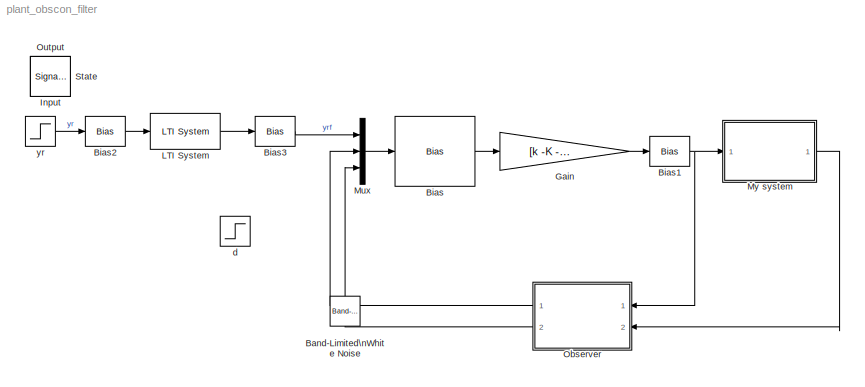
MODEL plant_obscon_filter
KIND model
BLOCK [Reference] Band-Limited\nWhite Noise  REF=simulink/Sources/Band-Limited\nWhite Noise
  Cov = 1e-6*0
  IOType = siggen
  Ports = [0, 1]
  SID = 12
  SourceBlock = simulink/Sources/Band-Limited\nWhite Noise
  SourceType = Band-Limited White Noise.
  Ts = 1e-2
  VectorParams1D = on
  seed = [23341]
BLOCK [Bias] Bias
  Bias = [-ybar; -xbar; -dbar]
  SID = 23
  SaturateOnIntegerOverflow = off
BLOCK [Bias] Bias1
  Bias = ubar
  SID = 24
  SaturateOnIntegerOverflow = off
BLOCK [Bias] Bias2
  Bias = -ybar
  SID = 37
  SaturateOnIntegerOverflow = off
BLOCK [Bias] Bias3
  Bias = ybar
  SID = 38
  SaturateOnIntegerOverflow = off
BLOCK [Gain] Gain
  Gain = [k -K -kd]
  Multiplication = Matrix(K*u) (u vector)
  OutDataTypeStr = Inherit: Inherit via internal rule
  ParamDataTypeStr = Inherit: Inherit via internal rule
  SID = 19
  SaturateOnIntegerOverflow = off
BLOCK [SignalViewerScope] Input
  IOType = viewer
  LegendLocations = 0.72634     0.90138     0.19753    0.035179\n0.65535      0.4158     0.26852    0.062284
  LimitDataPoints = off
  MaxDataPoints = 7500
  NumInputPorts = 2
  Ports = []
  RefreshTime = 0.035000
  SID = 17
  SaveName = ScopeData2
  ShowDataMarkers = off
  ShowLegends = on
  TimeRange = 40
  YMax = 0.45~0.05
  YMin = -0.4~-0.0025
BLOCK [Reference] LTI System  REF=cstblocks/LTI System
  IC = []
  Ports = [1, 1]
  SID = 36
  SourceBlock = cstblocks/LTI System
  SourceType = LTI Block
  sys = sysf
BLOCK [Mux] Mux
  DisplayOption = bar
  Inputs = [1 3  1]
  Ports = [3, 1]
  SID = 20
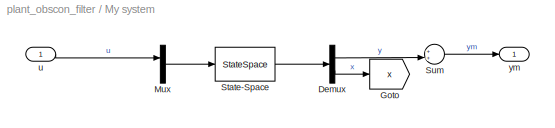
BLOCK [SubSystem] My system
  FunctionWithSeparateData = off
  MaskHideContents = off
  MinAlgLoopOccurrences = off
  Opaque = off
  Ports = [1, 1]
  PropExecContextOutsideSubsystem = off
  RTWSystemCode = Auto
  RequestExecContextInheritance = off
  SID = 1
BLOCK [Demux] My system/Demux
  DisplayOption = bar
  Outputs = [1 3]
  Ports = [1, 2]
  SID = 3
BLOCK [Goto] My system/Goto
  GotoTag = x
  SID = 22
  TagVisibility = global
BLOCK [Mux] My system/Mux
  DisplayOption = bar
  Inputs = 2
  Ports = [2, 1]
  SID = 5
BLOCK [StateSpace] My system/State-Space
  A = A
  B = [B Bd]
  C = [C; eye(3)]
  D = [D Dd; zeros(3,2)]
  SID = 6
  X0 = xbar
BLOCK [Sum] My system/Sum
  IconShape = round
  InputSameDT = off
  Inputs = ++|
  OutDataTypeStr = Inherit: Inherit via internal rule
  Ports = [2, 1]
  SID = 7
  SaturateOnIntegerOverflow = off
BLOCK [Inport] My system/u
  IconDisplay = Port number
  SID = 2
BLOCK [Outport] My system/ym
  IconDisplay = Port number
  SID = 9
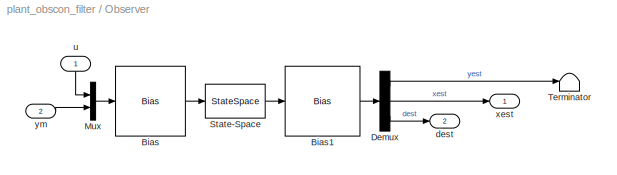
BLOCK [SubSystem] Observer
  FunctionWithSeparateData = off
  MaskHideContents = off
  MinAlgLoopOccurrences = off
  Opaque = off
  Ports = [2, 2]
  PropExecContextOutsideSubsystem = off
  RTWSystemCode = Auto
  RequestExecContextInheritance = off
  SID = 25
BLOCK [Bias] Observer/Bias
  Bias = [-ubar; -ybar]
  SID = 34
  SaturateOnIntegerOverflow = off
BLOCK [Bias] Observer/Bias1
  Bias = [ybar; xbar; dbar]
  SID = 35
  SaturateOnIntegerOverflow = off
BLOCK [Demux] Observer/Demux
  DisplayOption = bar
  Outputs = [1 3 1]
  Ports = [1, 3]
  SID = 28
BLOCK [Mux] Observer/Mux
  DisplayOption = bar
  Inputs = 2
  Ports = [2, 1]
  SID = 29
BLOCK [StateSpace] Observer/State-Space
  A = Aa-La*Ca
  B = [Ba La]
  C = [Ca; eye(4)]
  D = zeros(5,2)
  SID = 30
  X0 = xaestbar
BLOCK [Terminator] Observer/Terminator
  SID = 31
BLOCK [Outport] Observer/dest
  IconDisplay = Port number
  Port = 2
  SID = 33
BLOCK [Inport] Observer/u
  IconDisplay = Port number
  SID = 26
BLOCK [Outport] Observer/xest
  IconDisplay = Port number
  SID = 32
BLOCK [Inport] Observer/ym
  IconDisplay = Port number
  Port = 2
  SID = 27
BLOCK [SignalViewerScope] Output
  IOType = viewer
  LimitDataPoints = off
  MaxDataPoints = 7500
  NumInputPorts = 2
  Ports = []
  RefreshTime = 0.035000
  SID = 14
  SaveName = ScopeData1
  ShowDataMarkers = off
  ShowLegends = off
  TimeRange = 40
  YMax = 2.25~2.25
  YMin = -2~-2
BLOCK [SignalViewerScope] State
  IOType = viewer
  LimitDataPoints = off
  MaxDataPoints = 7500
  NumInputPorts = 1
  Ports = []
  RefreshTime = 0.035000
  SID = 13
  ShowDataMarkers = off
  ShowLegends = off
  TimeRange = 40
  YMax = 0.45
  YMin = -0.4
  ZoomMode = yonly
BLOCK [Step] d
  After = dbar+0.05
  Before = dbar
  IOType = siggen
  SID = 15
  SampleTime = 0
  Time = 10
BLOCK [Step] yr
  After = ybar+1
  Before = ybar
  SID = 21
  SampleTime = 0
  Time = 5
NET Bias1:1 -> My system:1, Observer:1
LINE Bias2:1 -> LTI System:1
LINE Bias3:1 -> Mux:1
LINE Bias:1 -> Gain:1
LINE Gain:1 -> Bias1:1
LINE LTI System:1 -> Bias3:1
LINE Mux:1 -> Bias:1
LINE My system/Demux:1 -> My system/Sum:2
LINE My system/Demux:2 -> My system/Goto:1
LINE My system/Mux:1 -> My system/State-Space:1
LINE My system/State-Space:1 -> My system/Demux:1
LINE My system/Sum:1 -> My system/ym:1
LINE My system/u:1 -> My system/Mux:1
LINE My system:1 -> Observer:2
LINE Observer/Bias1:1 -> Observer/Demux:1
LINE Observer/Bias:1 -> Observer/State-Space:1
LINE Observer/Demux:1 -> Observer/Terminator:1
LINE Observer/Demux:2 -> Observer/xest:1
LINE Observer/Demux:3 -> Observer/dest:1
LINE Observer/Mux:1 -> Observer/Bias:1
LINE Observer/State-Space:1 -> Observer/Bias1:1
LINE Observer/u:1 -> Observer/Mux:1
LINE Observer/ym:1 -> Observer/Mux:2
LINE Observer:1 -> Mux:2
LINE Observer:2 -> Mux:3
LINE yr:1 -> Bias2:1
note: NET lines group one-source signal fan-out (src -> all destinations, sorted); 1:1 wires keep LINE
